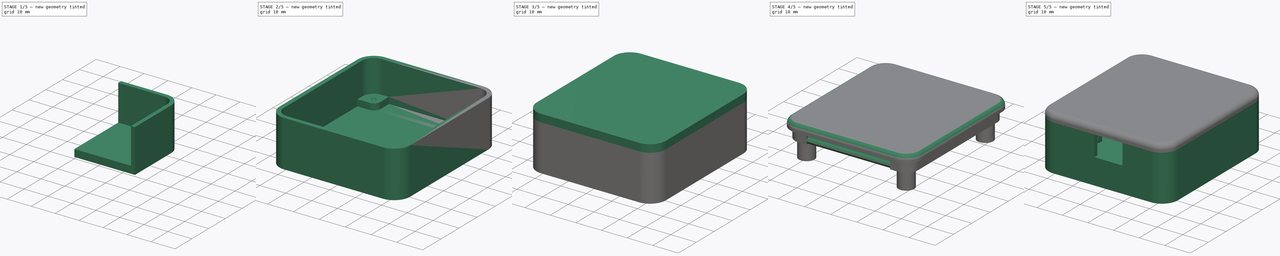
[diagram: build sequence overview — one tinted view per stage of 5, left to right]
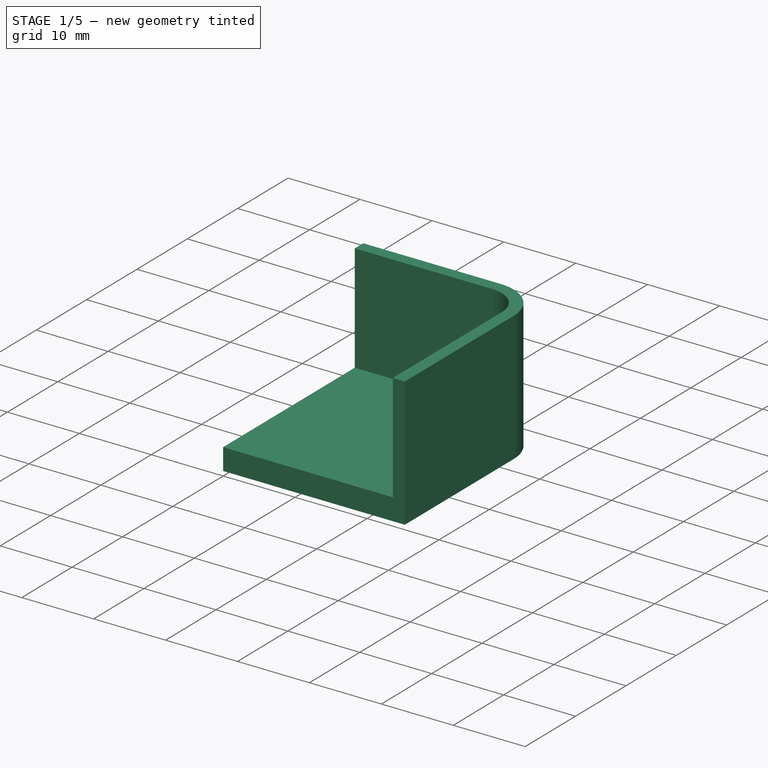
[diagram: stage 1 of 5 — iso view after this stage's code; geometry added in this stage tinted green]
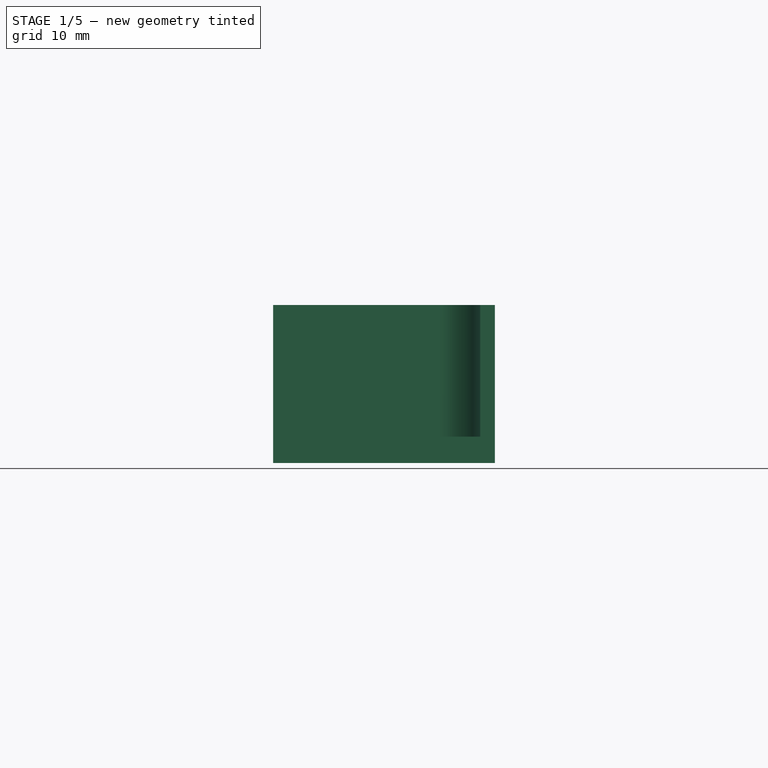
[diagram: stage 1 of 5 — front view after this stage's code; geometry added in this stage tinted green]
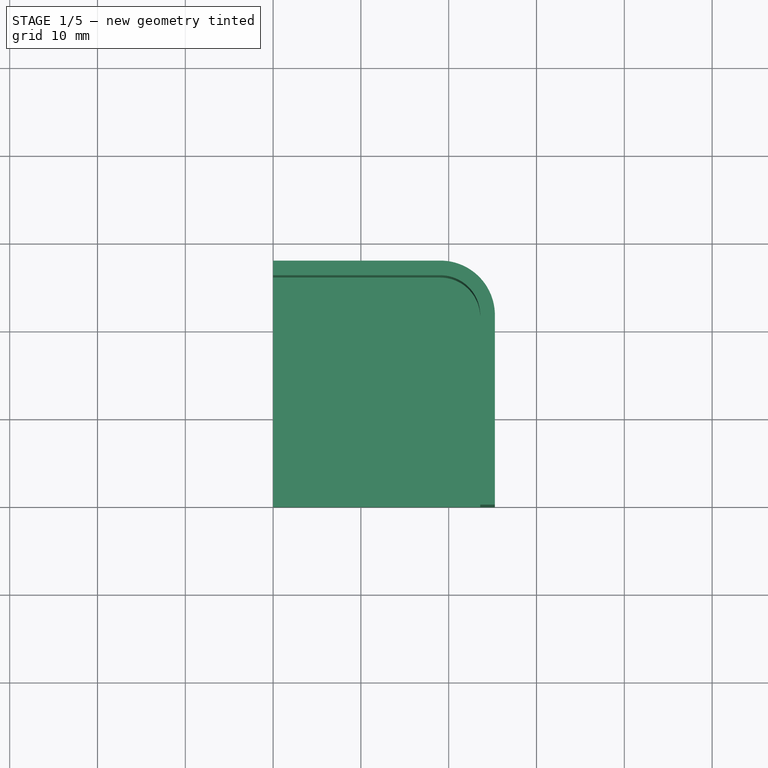
[diagram: stage 1 of 5 — top view after this stage's code; geometry added in this stage tinted green]
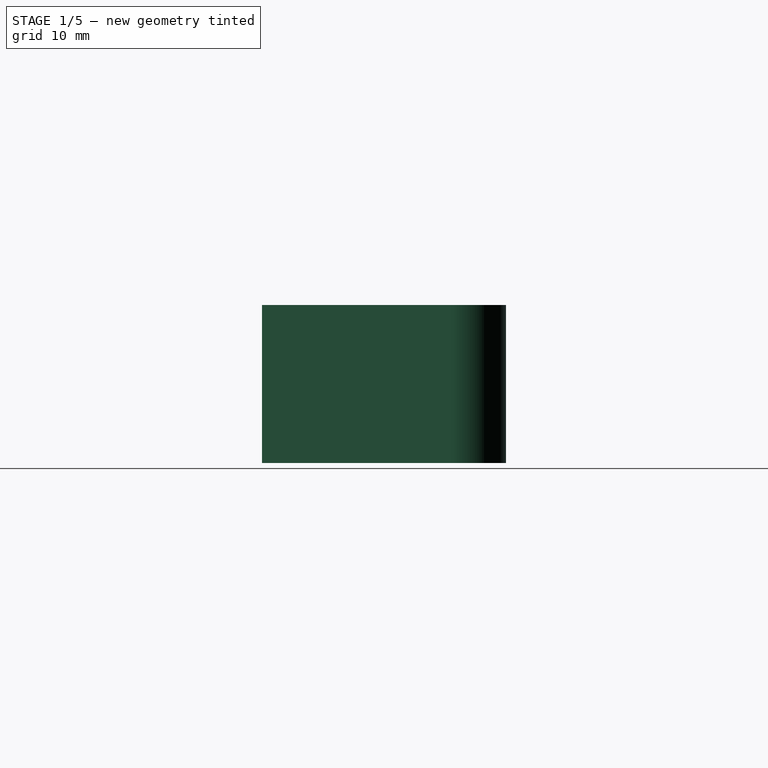
[diagram: stage 1 of 5 — right view after this stage's code; geometry added in this stage tinted green]
FCSTD DOCUMENT  (FreeCAD 2021.412R24301 +3461 (Git))
Label: housing
License: All rights reserved
LicenseURL: http://en.wikipedia.org/wiki/All_rights_reserved
objects: Sketcher::SketchObject×14, PartDesign::Pad×8, PartDesign::Mirrored×6, PartDesign::Pocket×5, PartDesign::ShapeBinder×4, PartDesign::Plane×2, PartDesign::MultiTransform×2, Part::SubShapeBinder×2, PartDesign::Body×2, Part::Feature×1, Part::FeaturePython×1, App::DocumentObjectGroup×1, Part::Compound×1, Spreadsheet::Sheet×1, PartDesign::Draft×1, PartDesign::Fillet×1
note: 88 computed .brp shape members not serialized (recipe doc carries the construction recipe); baked Part::Feature solids carry a one-line shape summary decoded from their .brp

FEATURE [Part::Feature] Feature  label="AR488_nano"
  shape: bbox 44.93 x 48.26 x 15.5 mm, 615 faces, 3 solids (baked)
FEATURE [Part::FeaturePython] Feature_child2  label="AR488_nano.2"  # WARN: FeaturePython — macro-defined, semantics opaque (R4)
  Base = -> Feature
  FilterType = 1
  Invert = false
  OverrideMaxVal = 0
  WindowFrom = 80
  WindowTo = 100
  items = 2
FEATURE [App::DocumentObjectGroup] GrExplode_Feature  label="Exploded AR488_nano"
  ExportMode = 1
  Group = -> [Feature_child2]
  _GroupVersion = 1
FEATURE [Part::Compound] Compound  label="PCB"
  Links = -> [GrExplode_Feature]
  Placement = pos=(0,0,1.6) rot=(1,0,0;3.14159rad)
FEATURE [PartDesign::Plane] DatumPlane
  AttachmentOffset = pos=(0,0,-2.5) rot=(0,0,1;0rad)
  Length = 43.18
  MapMode = 5
  MinimumLength = 10
  MinimumWidth = 10
  Placement = pos=(0,0,-2.5) rot=(0,0,1;0rad)
  ResizeMode = 0
  Support = -> [XY_Plane]
  Width = 48.26
FEATURE [Spreadsheet::Sheet] Spreadsheet  label="ss"
  PythonMode = false
  cells = A1=horizontal shell thickness; B1(ss_shell)==1.67mm; A2=lid clearance; B2(ss_lid_clearance)==0.05mm
FEATURE [PartDesign::ShapeBinder] ShapeBinder
  Placement = pos=(0,0,1.6) rot=(1,0,0;3.14159rad)
  Support = -> [Compound]
  TraceSupport = false
FEATURE [Sketcher::SketchObject] Sketch  label="base"
  ExternalGeometry = -> [ShapeBinder]
  FullyConstrained = true
  MapMode = 5
  Placement = pos=(0,0,-2.5) rot=(0,0,1;0rad)
  Support = -> [DatumPlane]
  expr: .Constraints[10] = <<ss>>.ss_shell + 2mm
  expr: .Constraints[33] = <<ss>>.ss_shell
  sketch-geometry (14):
    g0: LineSegment StartX=0 StartY=0 StartZ=0 EndX=0 EndY=27.8 EndZ=0
    g1: LineSegment StartX=0 StartY=27.8 StartZ=0 EndX=19.05 EndY=27.8 EndZ=0
    g2: ArcOfCircle CenterX=19.05 CenterY=21.59 CenterZ=0 NormalX=0 NormalY=0 NormalZ=1 AngleXU=0 Radius=6.21 StartAngle=-3.2001e-12 EndAngle=1.5708
    g3: LineSegment StartX=25.26 StartY=21.59 StartZ=0 EndX=25.26 EndY=0 EndZ=0
    g4: LineSegment StartX=25.26 StartY=0 StartZ=0 EndX=0 EndY=0 EndZ=0
    g5: LineSegment StartX=0 StartY=26.13 StartZ=0 EndX=19.05 EndY=26.13 EndZ=0
    g6: ArcOfCircle CenterX=19.05 CenterY=21.59 CenterZ=0 NormalX=0 NormalY=0 NormalZ=1 AngleXU=0 Radius=4.54 StartAngle=1e-16 EndAngle=1.5708
    g7: LineSegment StartX=23.59 StartY=21.59 StartZ=0 EndX=23.59 EndY=0 EndZ=0
    g8: Circle [constr] CenterX=19.05 CenterY=21.59 CenterZ=0 NormalX=0 NormalY=0 NormalZ=1 AngleXU=0 Radius=2.62
    g9: LineSegment StartX=23.59 StartY=18.97 StartZ=0 EndX=19.05 EndY=18.97 EndZ=0
    g10: LineSegment StartX=16.43 StartY=21.59 StartZ=0 EndX=16.43 EndY=26.13 EndZ=0
    g11: ArcOfCircle CenterX=19.05 CenterY=21.59 CenterZ=0 NormalX=0 NormalY=0 NormalZ=1 AngleXU=0 Radius=2.62 StartAngle=3.14159 EndAngle=4.71239
    g12: Circle CenterX=19.05 CenterY=21.59 CenterZ=0 NormalX=0 NormalY=0 NormalZ=1 AngleXU=0 Radius=0.95
    g13: LineSegment [constr] StartX=19.05 StartY=20.64 StartZ=0 EndX=19.05 EndY=18.97 EndZ=0
  constraints (36):
    c: Coincident(g-1,g0)
    c: PointOnObject(g0,g-2)
    c: Coincident(g0,g1)
    c: Horizontal(g1)
    c: Tangent(g1,g2) = 1.5708
    c: PointOnObject(g3,g-1)
    c: Vertical(g3)
    c: Coincident(g3,g4)
    c: Coincident(g4,g0)
    c: Coincident(g2,g-3)
    c: DistanceX(g-4,g2) = 3.67
    c: Tangent(g2,g3) = 1.5708
    c: PointOnObject(g5,g0)
    c: Horizontal(g5)
    c: Tangent(g5,g6) = 1.5708
    c: PointOnObject(g7,g4)
    c: Vertical(g7)
    c: Coincident(g6,g2)
    c: Tangent(g6,g7) = 1.5708
    c: DistanceX(g-4,g6) = 2
    c: Coincident(g8,g2)
    c: PointOnObject(g9,g8)
    c: PointOnObject(g9,g7)
    c: Horizontal(g9)
    c: PointOnObject(g10,g5)
    c: Vertical(g10)
    c: Coincident(g11,g2)
    c: Coincident(g11,g9)
    c: Coincident(g12,g2)
    c: Diameter(g12) = 1.9
    c: PointOnObject(g13,g12)
    c: Coincident(g13,g9)
    c: Vertical(g13)
    c: DistanceY(g13,g13) = 1.67
    c: Vertical(g13,g2)
    c: Tangent(g11,g10) = 1.5708
FEATURE [Sketcher::SketchObject] Sketch001
  ExternalGeometry = -> [Sketch]
  FullyConstrained = true
  MapMode = 5
  Placement = pos=(0,0,-2.5) rot=(0,0,1;0rad)
  Support = -> [DatumPlane]
  sketch-geometry (5):
    g0: LineSegment StartX=25.26 StartY=0 StartZ=0 EndX=0 EndY=0 EndZ=0
    g1: LineSegment StartX=0 StartY=0 StartZ=0 EndX=0 EndY=27.8 EndZ=0
    g2: LineSegment StartX=0 StartY=27.8 StartZ=0 EndX=19.05 EndY=27.8 EndZ=0
    g3: ArcOfCircle CenterX=19.05 CenterY=21.59 CenterZ=0 NormalX=0 NormalY=0 NormalZ=1 AngleXU=0 Radius=6.21 StartAngle=2.453e-13 EndAngle=1.5708
    g4: LineSegment StartX=25.26 StartY=21.59 StartZ=0 EndX=25.26 EndY=0 EndZ=0
  constraints (10):
    c: Coincident(g-4,g0)
    c: Coincident(g0,g-1)
    c: Coincident(g0,g1)
    c: Coincident(g1,g-5)
    c: Coincident(g1,g2)
    c: Coincident(g2,g-5)
    c: Tangent(g2,g3) = 1.5708
    c: Coincident(g3,g-4)
    c: Coincident(g3,g4)
    c: Coincident(g4,g0)
FEATURE [PartDesign::Pad] Pad
  ClaimChildren = false
  Direction = (1,1,1)
  Fit = 0
  FitJoin = 0
  InnerFit = 0
  InnerFitJoin = 0
  InnerTaperAngle = 0
  InnerTaperAngleRev = 0
  Length = 3
  Length2 = 100
  NewSolid = false
  Placement = pos=(0,0,-2.5) rot=(0,0,1;0rad)
  Profile = -> Sketch001
  Refine = true
  Reversed = true
  Suppress = false
  Type = 0
FEATURE [Sketcher::SketchObject] Sketch002
  ExternalGeometry = -> [Sketch]
  FullyConstrained = true
  MapMode = 5
  Placement = pos=(0,0,-2.5) rot=(0,0,1;0rad)
  Support = -> [DatumPlane]
  sketch-geometry (10):
    g0: LineSegment StartX=0 StartY=27.8 StartZ=0 EndX=0 EndY=26.13 EndZ=0
    g1: LineSegment StartX=0 StartY=26.13 StartZ=0 EndX=16.43 EndY=26.13 EndZ=0
    g2: LineSegment StartX=23.59 StartY=18.97 StartZ=0 EndX=23.59 EndY=0 EndZ=0
    g3: LineSegment StartX=23.59 StartY=0 StartZ=0 EndX=25.26 EndY=0 EndZ=0
    g4: LineSegment StartX=25.26 StartY=0 StartZ=0 EndX=25.26 EndY=21.59 EndZ=0
    g5: ArcOfCircle CenterX=19.05 CenterY=21.59 CenterZ=0 NormalX=0 NormalY=0 NormalZ=1 AngleXU=0 Radius=6.21 StartAngle=1.795e-13 EndAngle=1.5708
    g6: LineSegment StartX=19.05 StartY=27.8 StartZ=0 EndX=0 EndY=27.8 EndZ=0
    g7: LineSegment StartX=16.43 StartY=26.13 StartZ=0 EndX=19.05 EndY=26.13 EndZ=0
    g8: ArcOfCircle CenterX=19.05 CenterY=21.59 CenterZ=0 NormalX=0 NormalY=0 NormalZ=1 AngleXU=0 Radius=4.54 StartAngle=0 EndAngle=1.5708
    g9: LineSegment StartX=23.59 StartY=21.59 StartZ=0 EndX=23.59 EndY=18.97 EndZ=0
  constraints (20):
    c: Coincident(g-9,g0)
    c: Coincident(g0,g-6)
    c: Coincident(g0,g1)
    c: Coincident(g1,g-4)
    c: Coincident(g2,g-5)
    c: Coincident(g2,g3)
    c: Coincident(g3,g-7)
    c: Coincident(g3,g4)
    c: Coincident(g4,g-8)
    c: Tangent(g4,g5) = -1.5708
    c: Coincident(g5,g-9)
    c: Coincident(g5,g6)
    c: Coincident(g6,g0)
    c: Coincident(g1,g7)
    c: Coincident(g7,g-6)
    c: Tangent(g7,g8) = 1.5708
    c: Coincident(g8,g-5)
    c: Coincident(g8,g9)
    c: Coincident(g9,g2)
    c: Coincident(g2,g-3)
FEATURE [PartDesign::Pad] Pad001
  BaseFeature = -> Pad
  ClaimChildren = false
  Direction = (1,1,1)
  Fit = 0
  FitJoin = 0
  InnerFit = 0
  InnerFitJoin = 0
  InnerTaperAngle = 0
  InnerTaperAngleRev = 0
  Length = 15
  Length2 = 100
  NewSolid = false
  Placement = pos=(0,0,-2.5) rot=(0,0,1;0rad)
  Profile = -> Sketch002
  Refine = true
  Suppress = false
  Type = 0
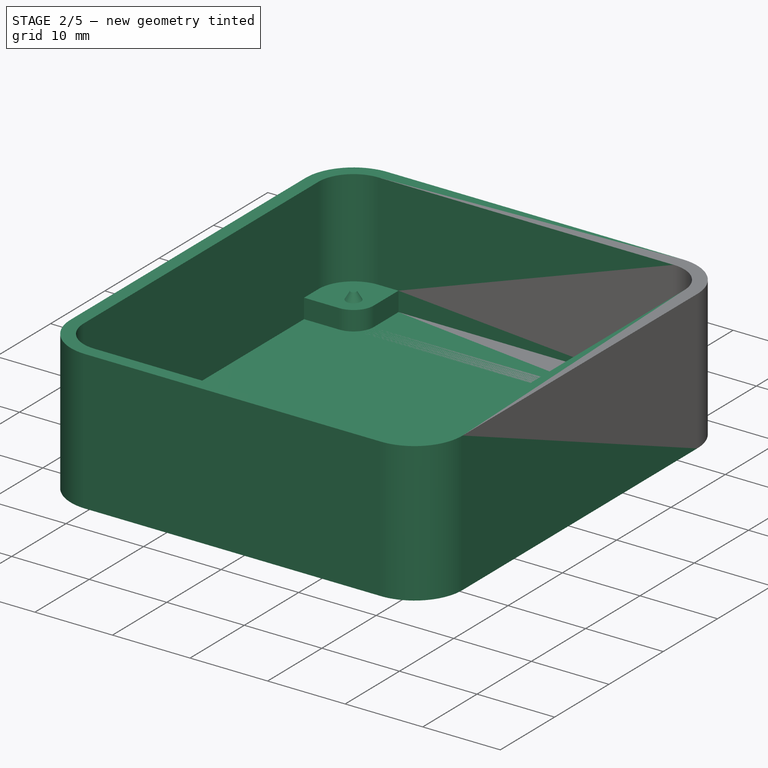
[diagram: stage 2 of 5 — iso view after this stage's code; geometry added in this stage tinted green]
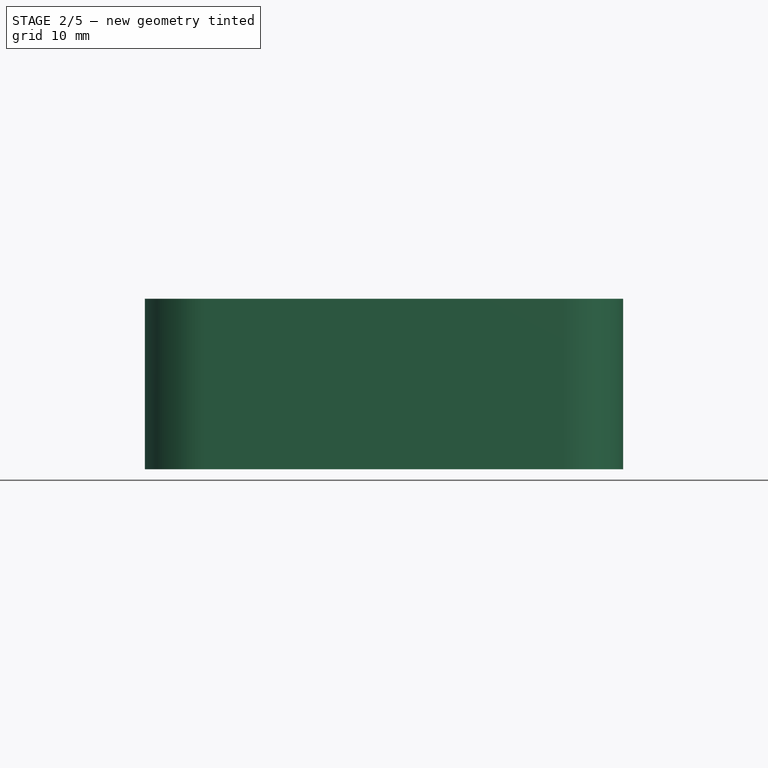
[diagram: stage 2 of 5 — front view after this stage's code; geometry added in this stage tinted green]
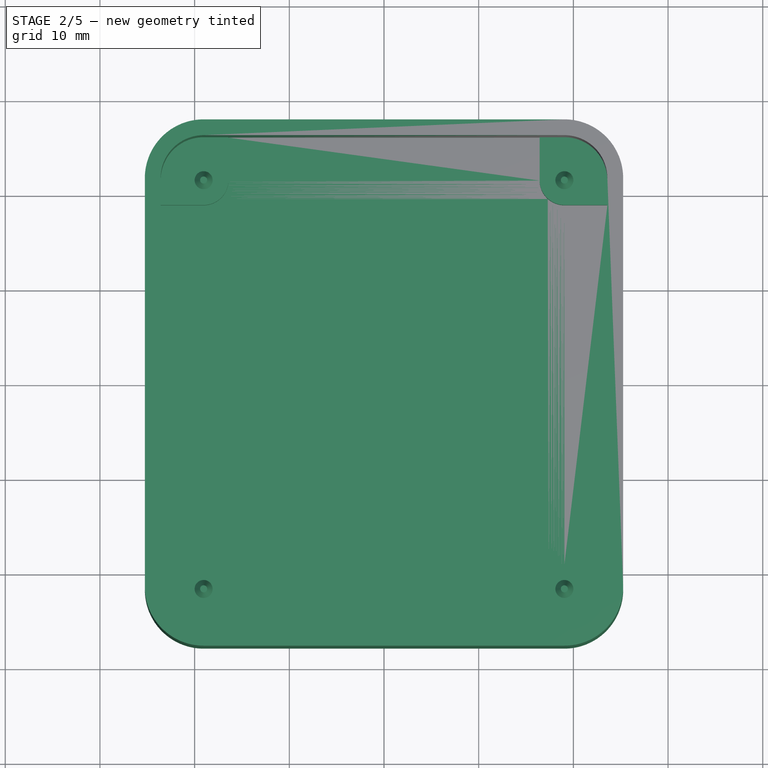
[diagram: stage 2 of 5 — top view after this stage's code; geometry added in this stage tinted green]
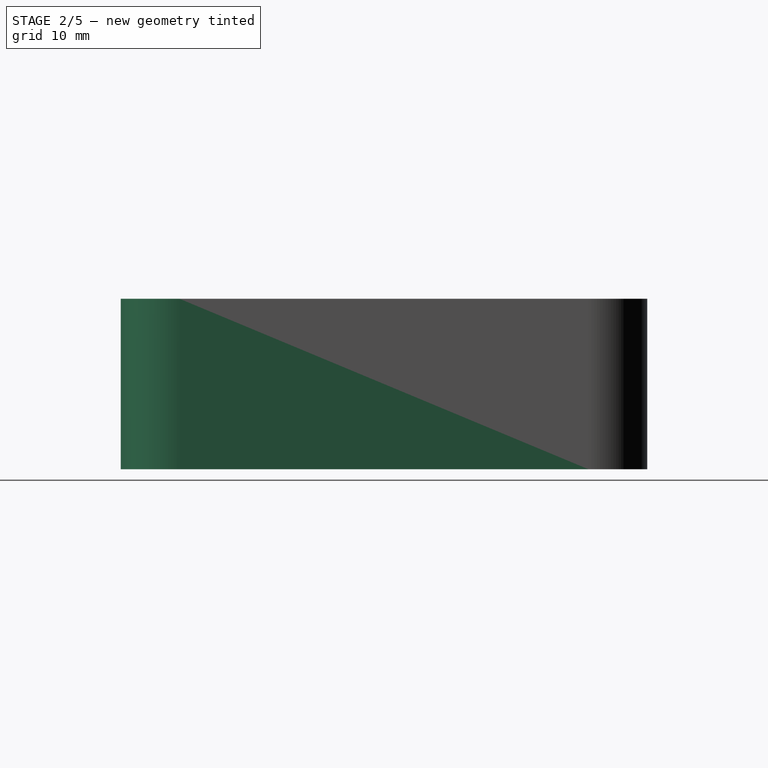
[diagram: stage 2 of 5 — right view after this stage's code; geometry added in this stage tinted green]
FEATURE [Sketcher::SketchObject] Sketch003
  ExternalGeometry = -> [Sketch]
  FullyConstrained = true
  MapMode = 5
  Placement = pos=(0,0,-2.5) rot=(0,0,1;0rad)
  Support = -> [DatumPlane]
  sketch-geometry (6):
    g0: LineSegment StartX=16.43 StartY=26.13 StartZ=0 EndX=19.05 EndY=26.13 EndZ=0
    g1: ArcOfCircle CenterX=19.05 CenterY=21.59 CenterZ=0 NormalX=0 NormalY=0 NormalZ=1 AngleXU=0 Radius=4.54 StartAngle=0 EndAngle=1.5708
    g2: LineSegment StartX=23.59 StartY=21.59 StartZ=0 EndX=23.59 EndY=18.97 EndZ=0
    g3: LineSegment StartX=23.59 StartY=18.97 StartZ=0 EndX=19.05 EndY=18.97 EndZ=0
    g4: ArcOfCircle CenterX=19.05 CenterY=21.59 CenterZ=0 NormalX=0 NormalY=0 NormalZ=1 AngleXU=0 Radius=2.62 StartAngle=3.14159 EndAngle=4.71239
    g5: LineSegment StartX=16.43 StartY=21.59 StartZ=0 EndX=16.43 EndY=26.13 EndZ=0
  constraints (12):
    c: Coincident(g-4,g0)
    c: Coincident(g0,g-6)
    c: Tangent(g0,g1) = 1.5708
    c: Coincident(g1,g-6)
    c: Coincident(g1,g2)
    c: Coincident(g2,g-3)
    c: Coincident(g2,g3)
    c: Coincident(g3,g-5)
    c: Tangent(g3,g4) = 1.5708
    c: Coincident(g4,g-5)
    c: Coincident(g4,g5)
    c: Coincident(g5,g0)
FEATURE [PartDesign::Pad] Pad002
  BaseFeature = -> Pad001
  ClaimChildren = false
  Direction = (1,1,1)
  Fit = 0
  FitJoin = 0
  InnerFit = 0
  InnerFitJoin = 0
  InnerTaperAngle = 0
  InnerTaperAngleRev = 0
  Length = 2.5
  Length2 = 100
  NewSolid = false
  Placement = pos=(0,0,-2.5) rot=(0,0,1;0rad)
  Profile = -> Sketch003
  Refine = true
  Suppress = false
  Type = 0
FEATURE [PartDesign::Mirrored] Mirrored
  CopyShape = false
  MirrorPlane = -> Sketch001 [V_Axis]
  NewSolid = false
  ParallelTransform = true
  Placement = pos=(0,0,-2.5) rot=(0,0,1;0rad)
  Refine = true
  SubTransform = true
  Suppress = false
FEATURE [PartDesign::Mirrored] Mirrored001
  CopyShape = false
  MirrorPlane = -> Sketch001 [H_Axis]
  NewSolid = false
  ParallelTransform = true
  Placement = pos=(0,0,-2.5) rot=(0,0,1;0rad)
  Refine = true
  SubTransform = true
  Suppress = false
FEATURE [Sketcher::SketchObject] Sketch004
  ExternalGeometry = -> [Sketch]
  FullyConstrained = true
  MapMode = 5
  Support = -> [XY_Plane]
  sketch-geometry (1):
    g0: Circle CenterX=19.05 CenterY=21.59 CenterZ=0 NormalX=0 NormalY=0 NormalZ=1 AngleXU=0 Radius=0.95
  constraints (2):
    c: Coincident(g0,g-3)
    c: Equal(g-3,g0)
FEATURE [PartDesign::Pad] Pad003
  BaseFeature = -> Pad002
  ClaimChildren = false
  Direction = (1,1,1)
  Fit = 0
  FitJoin = 0
  InnerFit = 0
  InnerFitJoin = 0
  InnerTaperAngle = 0
  InnerTaperAngleRev = 0
  Length = 1
  Length2 = 100
  NewSolid = false
  Placement = pos=(0,0,-2.5) rot=(0,0,1;0rad)
  Profile = -> Sketch004
  Suppress = false
  Type = 0
FEATURE [PartDesign::Draft] Draft
  Angle = 30
  Base = -> Pad003 [Face16]
  BaseFeature = -> Pad003
  NewSolid = false
  Placement = pos=(0,0,-2.5) rot=(0,0,1;0rad)
  SupportTransform = false
  Suppress = false
FEATURE [PartDesign::MultiTransform] MultiTransform
  BaseFeature = -> Draft
  CopyShape = false
  NewSolid = false
  OriginalSubs = -> [Pad,Pad001,Pad002,Pad003,Draft]
  Originals = -> [Pad,Pad001,Pad002,Pad003,Draft]
  ParallelTransform = true
  Placement = pos=(0,0,-2.5) rot=(0,0,1;0rad)
  Refine = true
  SubTransform = true
  Suppress = false
  Transformations = -> [Mirrored,Mirrored001]
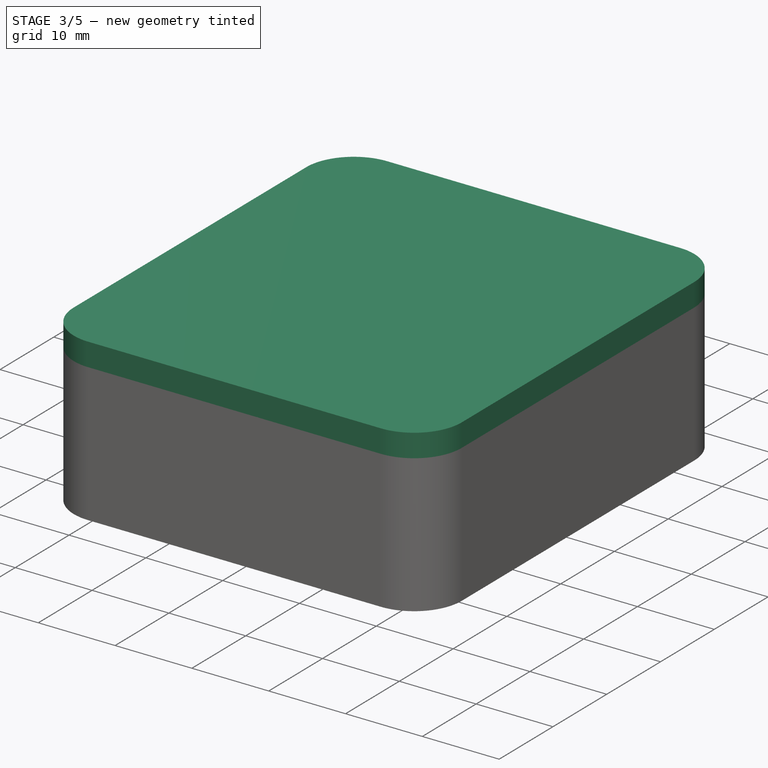
[diagram: stage 3 of 5 — iso view after this stage's code; geometry added in this stage tinted green]
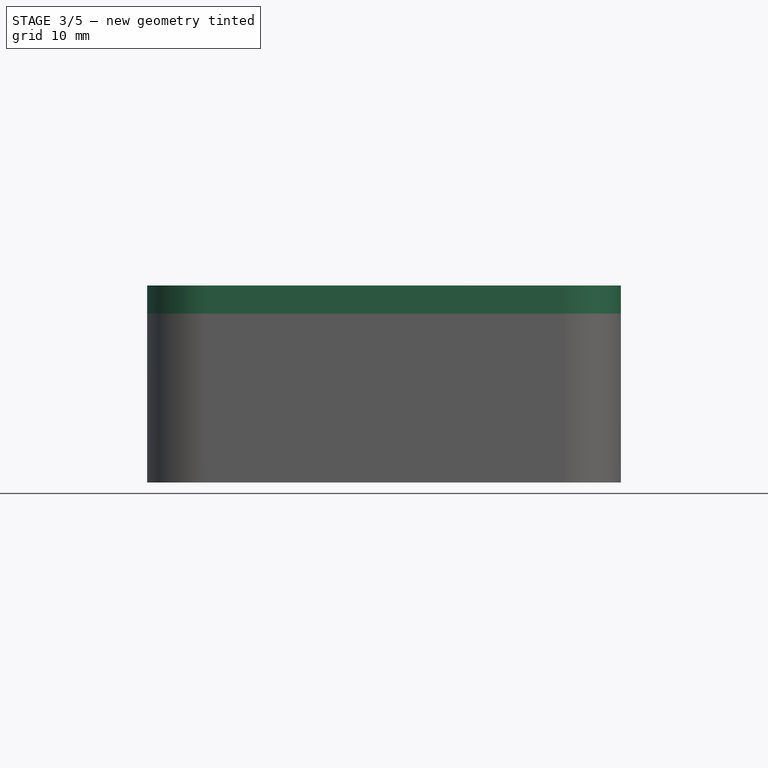
[diagram: stage 3 of 5 — front view after this stage's code; geometry added in this stage tinted green]
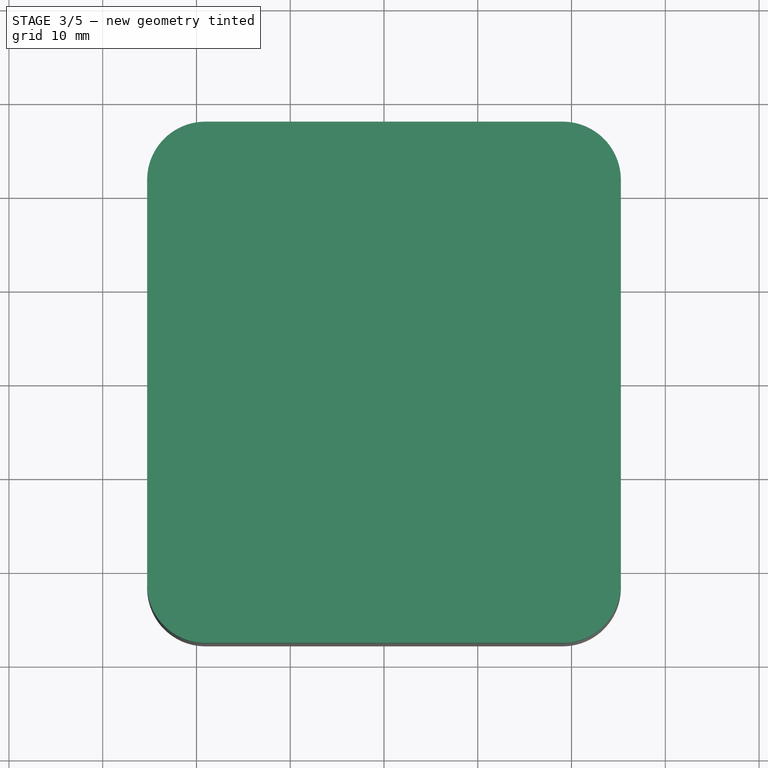
[diagram: stage 3 of 5 — top view after this stage's code; geometry added in this stage tinted green]
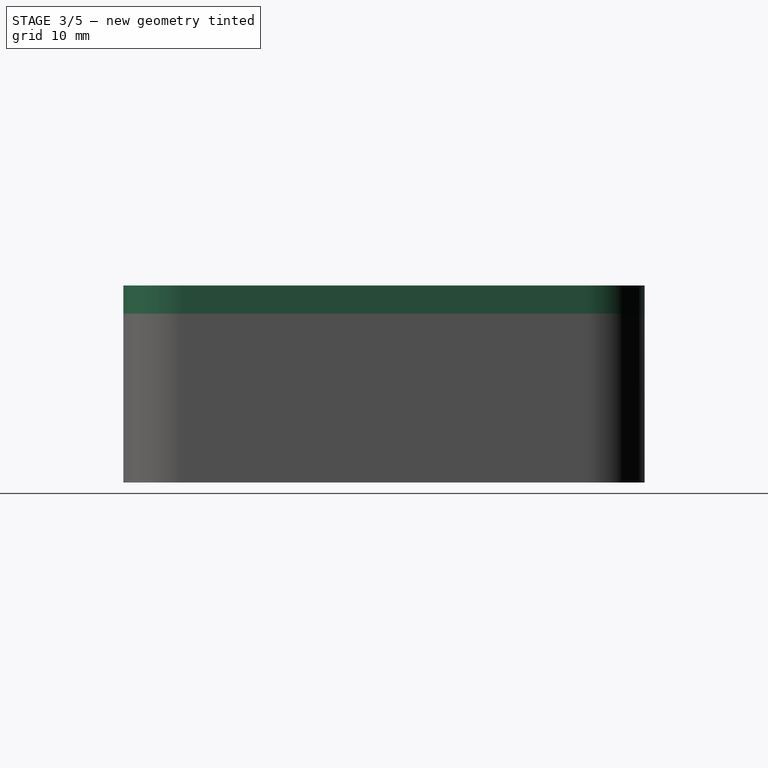
[diagram: stage 3 of 5 — right view after this stage's code; geometry added in this stage tinted green]
FEATURE [Sketcher::SketchObject] Sketch005
  ExternalGeometry = -> [ShapeBinder,MultiTransform]
  FullyConstrained = true
  MapMode = 5
  Placement = pos=(0,0,0) rot=(0.57735,0.57735,0.57735;2.0944rad)
  Support = -> [YZ_Plane]
  sketch-geometry (6):
    g0: LineSegment StartX=17.52 StartY=12.5 StartZ=0 EndX=-19.42 EndY=12.5 EndZ=0
    g1: LineSegment StartX=-19.42 StartY=12.5 StartZ=0 EndX=-19.42 EndY=11.7 EndZ=0
    g2: LineSegment StartX=-19.42 StartY=11.7 StartZ=0 EndX=17.52 EndY=11.7 EndZ=0
    g3: LineSegment StartX=17.52 StartY=11.7 StartZ=0 EndX=17.52 EndY=12.5 EndZ=0
    g4: LineSegment [constr] StartX=12.52 StartY=1.6 StartZ=0 EndX=-14.42 EndY=1.6 EndZ=0
    g5: LineSegment [constr] StartX=-0.95 StartY=1.6 StartZ=0 EndX=-0.95 EndY=12.5 EndZ=0
  constraints (16):
    c: Coincident(g0,g1)
    c: Coincident(g1,g2)
    c: Coincident(g2,g3)
    c: Coincident(g3,g0)
    c: Horizontal(g0)
    c: Vertical(g1)
    c: Vertical(g3)
    c: Coincident(g4,g-3)
    c: Coincident(g4,g-4)
    c: PointOnObject(g5,g4)
    c: PointOnObject(g5,g0)
    c: Symmetric(g-3,g-4,g5)
    c: Symmetric(g2,g1,g5)
    c: DistanceX(g-3,g2) = 4
    c: Horizontal(g0,g-5)
    c: DistanceY(g3,g3) = 0.8
FEATURE [PartDesign::Pocket] Pocket
  BaseFeature = -> MultiTransform
  ClaimChildren = false
  Fit = 0
  FitJoin = 0
  InnerFit = 0
  InnerFitJoin = 0
  InnerTaperAngle = 0
  InnerTaperAngleRev = 0
  Length = 5
  Length2 = 100
  NewSolid = false
  Placement = pos=(0,0,-2.5) rot=(0,0,1;0rad)
  Profile = -> Sketch005
  Suppress = false
  Type = 1
FEATURE [Part::SubShapeBinder] Import  label="Import(Pocket)"
  BindCopyOnChange = 0
  BindMode = 0
  ClaimChildren = false
  Context = -> Body001 [Import.]
  FillStyle = 0
  Fuse = false
  MakeFace = false
  PartialLoad = false
  Relative = true
  Support = -> [Body[Pocket.]]
  _Version = 7
FEATURE [PartDesign::Plane] DatumPlane001
  Length = 52.5
  MapMode = 5
  MinimumLength = 10
  MinimumWidth = 10
  Placement = pos=(0,0,12.5) rot=(0,0,1;0rad)
  ResizeMode = 0
  Support = -> [Import]
  Width = 57.58
FEATURE [Sketcher::SketchObject] Sketch006
  ExternalGeometry = -> [Import]
  FullyConstrained = true
  MapMode = 5
  Placement = pos=(0,0,12.5) rot=(0,0,1;0rad)
  Support = -> [DatumPlane001]
  sketch-geometry (5):
    g0: LineSegment StartX=25.26 StartY=21.59 StartZ=0 EndX=25.26 EndY=0 EndZ=0
    g1: LineSegment StartX=25.26 StartY=0 StartZ=0 EndX=0 EndY=0 EndZ=0
    g2: LineSegment StartX=0 StartY=0 StartZ=0 EndX=0 EndY=27.8 EndZ=0
    g3: LineSegment StartX=0 StartY=27.8 StartZ=0 EndX=19.05 EndY=27.8 EndZ=0
    g4: ArcOfCircle CenterX=19.05 CenterY=21.59 CenterZ=0 NormalX=0 NormalY=0 NormalZ=1 AngleXU=0 Radius=6.21 StartAngle=3.8365e-12 EndAngle=1.5708
  constraints (11):
    c: Tangent(g-5,g0) = 1.5708
    c: Coincident(g0,g1)
    c: Coincident(g1,g-1)
    c: Horizontal(g1)
    c: Coincident(g1,g2)
    c: PointOnObject(g2,g-2)
    c: Coincident(g2,g3)
    c: Coincident(g3,g-5)
    c: Horizontal(g3)
    c: Tangent(g3,g4) = 1.5708
    c: Coincident(g4,g0)
FEATURE [PartDesign::Pad] Pad004
  ClaimChildren = false
  Direction = (1,1,1)
  Fit = 0
  FitJoin = 0
  InnerFit = 0
  InnerFitJoin = 0
  InnerTaperAngle = 0
  InnerTaperAngleRev = 0
  Length = 3
  Length2 = 100
  NewSolid = false
  Placement = pos=(0,0,12.5) rot=(0,0,1;0rad)
  Profile = -> Sketch006
  Suppress = false
  Type = 0
FEATURE [PartDesign::ShapeBinder] ShapeBinder001
  Placement = pos=(0,0,1.6) rot=(1,0,0;3.14159rad)
  Support = -> [Compound]
  TraceSupport = false
FEATURE [Sketcher::SketchObject] Sketch007
  ExternalGeometry = -> [ShapeBinder001]
  FullyConstrained = true
  MapMode = 5
  Placement = pos=(0,0,12.5) rot=(0,0,1;0rad)
  Support = -> [DatumPlane001]
  sketch-geometry (1):
    g0: Circle CenterX=19.05 CenterY=21.59 CenterZ=0 NormalX=0 NormalY=0 NormalZ=1 AngleXU=0 Radius=3
  constraints (2):
    c: Coincident(g0,g-3)
    c: Diameter(g0) = 6
FEATURE [Sketcher::SketchObject] Sketch008
  ExternalGeometry = -> [Import]
  FullyConstrained = true
  MapMode = 5
  Placement = pos=(0,0,12.5) rot=(0,0,1;0rad)
  Support = -> [DatumPlane001]
  expr: .Constraints[19] = <<ss>>.ss_lid_clearance
  sketch-geometry (8):
    g0: LineSegment StartX=0 StartY=26.08 StartZ=0 EndX=0 EndY=23.42 EndZ=0
    g1: LineSegment StartX=0 StartY=23.42 StartZ=0 EndX=19.05 EndY=23.42 EndZ=0
    g2: ArcOfCircle CenterX=19.05 CenterY=21.59 CenterZ=0 NormalX=0 NormalY=0 NormalZ=1 AngleXU=0 Radius=1.83 StartAngle=6e-16 EndAngle=1.5708
    g3: LineSegment StartX=20.88 StartY=21.59 StartZ=0 EndX=20.88 EndY=0 EndZ=0
    g4: LineSegment StartX=20.88 StartY=0 StartZ=0 EndX=23.54 EndY=0 EndZ=0
    g5: LineSegment StartX=0 StartY=26.08 StartZ=0 EndX=19.05 EndY=26.08 EndZ=0
    g6: ArcOfCircle CenterX=19.05 CenterY=21.59 CenterZ=0 NormalX=0 NormalY=0 NormalZ=1 AngleXU=0 Radius=4.49 StartAngle=1e-16 EndAngle=1.5708
    g7: LineSegment StartX=23.54 StartY=21.59 StartZ=0 EndX=23.54 EndY=0 EndZ=0
  constraints (20):
    c: PointOnObject(g0,g-2)
    c: Vertical(g0)
    c: Coincident(g0,g1)
    c: Horizontal(g1)
    c: Tangent(g1,g2) = 1.5708
    c: Tangent(g2,g3) = 1.5708
    c: PointOnObject(g3,g-1)
    c: Coincident(g3,g4)
    c: Horizontal(g4)
    c: Vertical(g3)
    c: DistanceY(g0,g0) = 2.66
    c: Coincident(g0,g5)
    c: Horizontal(g5)
    c: Tangent(g5,g6) = 1.5708
    c: Tangent(g6,g7) = 1.5708
    c: Coincident(g7,g4)
    c: Coincident(g2,g6)
    c: Coincident(g2,g-3) = 2.66
    c: Vertical(g7)
    c: DistanceX(g6,g-3) = 0.05
FEATURE [PartDesign::Pad] Pad005
  BaseFeature = -> Pad004
  ClaimChildren = false
  Direction = (1,1,1)
  Fit = 0
  FitJoin = 0
  InnerFit = 0
  InnerFitJoin = 0
  InnerTaperAngle = 0
  InnerTaperAngleRev = 0
  Length = 4
  Length2 = 100
  NewSolid = false
  Placement = pos=(0,0,12.5) rot=(0,0,1;0rad)
  Profile = -> Sketch008
  Reversed = true
  Suppress = false
  Type = 0
FEATURE [PartDesign::Pad] Pad006
  BaseFeature = -> Pad005
  ClaimChildren = false
  Direction = (1,1,1)
  Fit = 0
  FitJoin = 0
  InnerFit = 0
  InnerFitJoin = 0
  InnerTaperAngle = 0
  InnerTaperAngleRev = 0
  Length = 10
  Length2 = 100
  NewSolid = false
  Placement = pos=(0,0,12.5) rot=(0,0,1;0rad)
  Profile = -> Sketch007
  Reversed = true
  Suppress = false
  Type = 3
  UpToFace = -> ShapeBinder001 [Face4]
FEATURE [PartDesign::Mirrored] Mirrored002
  CopyShape = false
  MirrorPlane = -> Sketch007 [V_Axis]
  NewSolid = false
  ParallelTransform = true
  Placement = pos=(0,0,12.5) rot=(0,0,1;0rad)
  SubTransform = true
  Suppress = false
FEATURE [PartDesign::Mirrored] Mirrored003
  CopyShape = false
  MirrorPlane = -> Sketch007 [H_Axis]
  NewSolid = false
  ParallelTransform = true
  Placement = pos=(0,0,12.5) rot=(0,0,1;0rad)
  SubTransform = true
  Suppress = false
FEATURE [PartDesign::MultiTransform] MultiTransform001
  BaseFeature = -> Pad006
  CopyShape = false
  NewSolid = false
  OriginalSubs = -> [Pad006,Pad005,Pad004]
  Originals = -> [Pad006,Pad005,Pad004]
  ParallelTransform = true
  Placement = pos=(0,0,12.5) rot=(0,0,1;0rad)
  Refine = true
  SubTransform = true
  Suppress = false
  Transformations = -> [Mirrored002,Mirrored003]
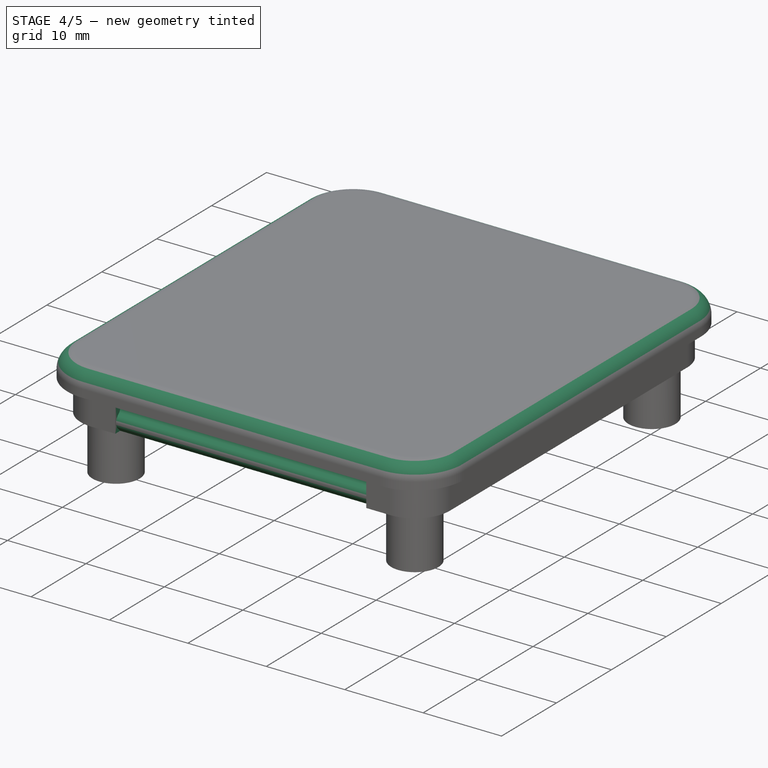
[diagram: stage 4 of 5 — iso view after this stage's code; geometry added in this stage tinted green]
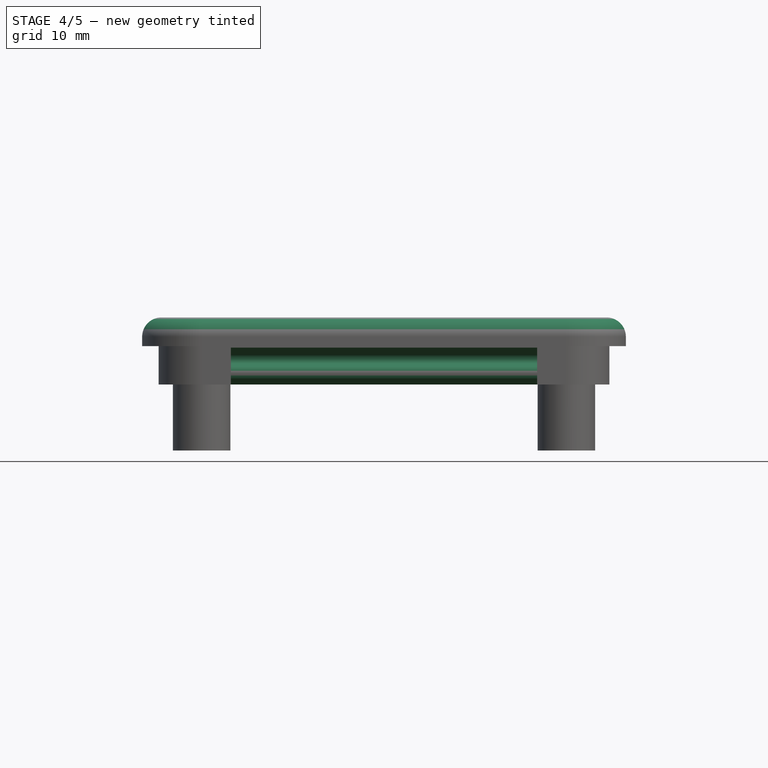
[diagram: stage 4 of 5 — front view after this stage's code; geometry added in this stage tinted green]
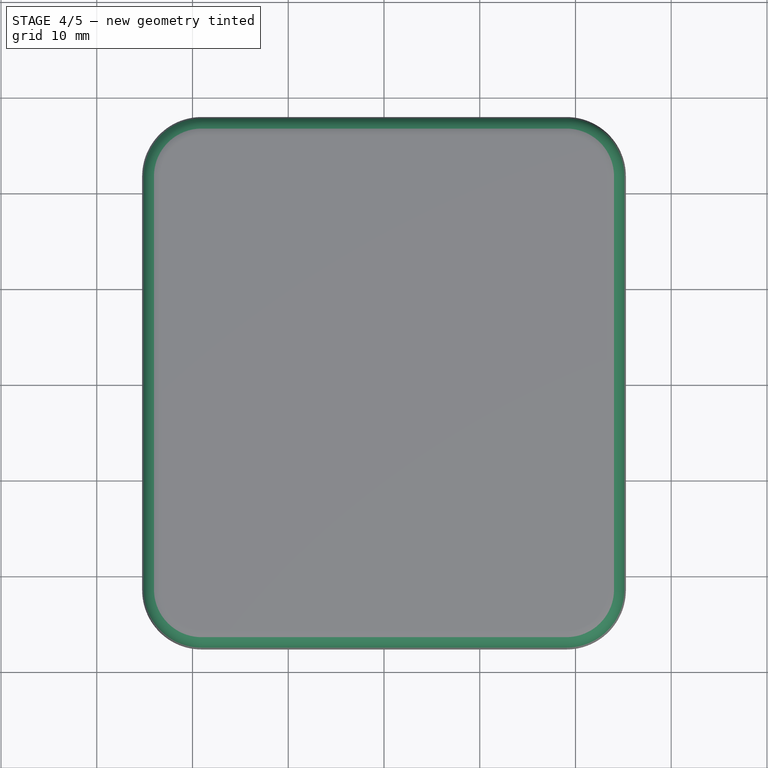
[diagram: stage 4 of 5 — top view after this stage's code; geometry added in this stage tinted green]
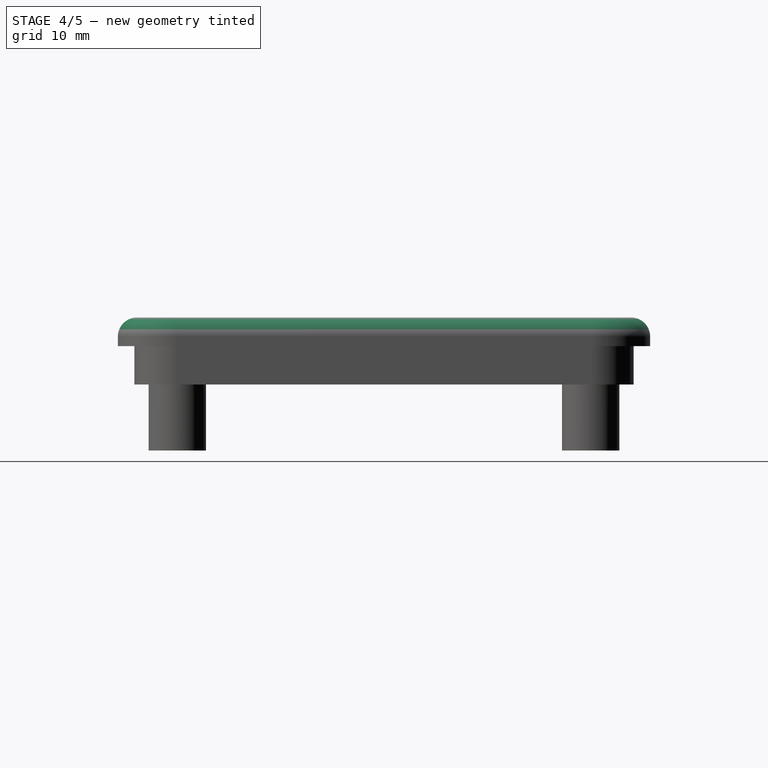
[diagram: stage 4 of 5 — right view after this stage's code; geometry added in this stage tinted green]
FEATURE [Sketcher::SketchObject] Sketch009
  ExternalGeometry = -> [Import,MultiTransform001]
  FullyConstrained = true
  MapMode = 5
  Placement = pos=(0,0,0) rot=(0.57735,0.57735,0.57735;2.0944rad)
  Support = -> [YZ_Plane001]
  sketch-geometry (4):
    g0: LineSegment StartX=17.52 StartY=12.5 StartZ=0 EndX=-19.42 EndY=12.5 EndZ=0
    g1: LineSegment StartX=-19.42 StartY=12.5 StartZ=0 EndX=-19.42 EndY=8.5 EndZ=0
    g2: LineSegment StartX=-19.42 StartY=8.5 StartZ=0 EndX=17.52 EndY=8.5 EndZ=0
    g3: LineSegment StartX=17.52 StartY=8.5 StartZ=0 EndX=17.52 EndY=12.5 EndZ=0
  constraints (10):
    c: Coincident(g0,g1)
    c: Coincident(g1,g2)
    c: Coincident(g2,g3)
    c: Coincident(g3,g0)
    c: Horizontal(g2)
    c: Vertical(g1)
    c: Vertical(g3)
    c: Coincident(g0,g-4)
    c: Horizontal(g-5,g1)
    c: Coincident(g0,g-3)
FEATURE [PartDesign::Pocket] Pocket001
  BaseFeature = -> MultiTransform001
  ClaimChildren = false
  Fit = 0
  FitJoin = 0
  InnerFit = 0
  InnerFitJoin = 0
  InnerTaperAngle = 0
  InnerTaperAngleRev = 0
  Length = 5
  Length2 = 100
  NewSolid = false
  Placement = pos=(0,0,12.5) rot=(0,0,1;0rad)
  Profile = -> Sketch009
  Suppress = false
  Type = 1
FEATURE [PartDesign::ShapeBinder] ShapeBinder002
  Placement = pos=(0,0,0) rot=(0.57735,0.57735,0.57735;2.0944rad)
  Support = -> [Sketch010]
  TraceSupport = false
FEATURE [Sketcher::SketchObject] Sketch011
  ExternalGeometry = -> [ShapeBinder002,Pocket001]
  FullyConstrained = true
  MapMode = 5
  Placement = pos=(0,0,0) rot=(0.57735,0.57735,0.57735;2.0944rad)
  Support = -> [YZ_Plane001]
  sketch-geometry (9):
    g0: LineSegment StartX=25.6579 StartY=10.3922 StartZ=0 EndX=25.385 EndY=10.6651 EndZ=0
    g1: ArcOfCircle CenterX=25.88 CenterY=11.1601 CenterZ=0 NormalX=0 NormalY=0 NormalZ=1 AngleXU=0 Radius=0.7 StartAngle=2.35619 EndAngle=3.92699
    g2: LineSegment StartX=25.385 StartY=11.655 StartZ=0 EndX=26.08 EndY=12.35 EndZ=0
    g3: LineSegment StartX=25.6579 StartY=8.97794 StartZ=0 EndX=25.18 EndY=8.5 EndZ=0
    g4: LineSegment StartX=25.18 StartY=8.5 StartZ=0 EndX=26.13 EndY=8.5 EndZ=0
    g5: LineSegment StartX=26.13 StartY=8.5 StartZ=0 EndX=26.13 EndY=12.35 EndZ=0
    g6: LineSegment StartX=26.13 StartY=12.35 StartZ=0 EndX=26.08 EndY=12.35 EndZ=0
    g7: ArcOfCircle CenterX=24.9508 CenterY=9.68505 CenterZ=0 NormalX=0 NormalY=0 NormalZ=1 AngleXU=0 Radius=1 StartAngle=5.49779 EndAngle=7.06858
    g8: LineSegment [constr] StartX=25.18 StartY=11.1601 StartZ=0 EndX=25.18 EndY=8.5 EndZ=0
  constraints (25):
    c: Tangent(g0,g1) = 1.5708
    c: Equal(g1,g-5)
    c: Tangent(g1,g2) = 1.5708
    c: Equal(g2,g-3)
    c: DistanceY(g1,g-5) = 0.15
    c: Coincident(g3,g4)
    c: Horizontal(g4)
    c: Coincident(g4,g5)
    c: Vertical(g5) = 0.15
    c: Coincident(g5,g6) = 0.15
    c: Coincident(g6,g2)
    c: Horizontal(g6)
    c: PointOnObject(g5,g-7)
    c: Horizontal(g4,g-6)
    c: Angle(g4,g3) = 0.785398
    c: Vertical(g2,g-6)
    c: Tangent(g7,g3) = 1.5708
    c: Tangent(g7,g0) = -1.5708
    c: Parallel(g2,g-3)
    c: Parallel(g0,g-4)
    c: PointOnObject(g8,g1)
    c: Coincident(g8,g3)
    c: Vertical(g8)
    c: Tangent(g1,g8)
    c: Radius(g7) = 1
FEATURE [PartDesign::Pocket] Pocket002
  BaseFeature = -> Pocket001
  ClaimChildren = false
  Fit = 0
  FitJoin = 0
  InnerFit = 0
  InnerFitJoin = 0
  InnerTaperAngle = 0
  InnerTaperAngleRev = 0
  Length = 32
  Length2 = 100
  Midplane = true
  NewSolid = false
  Placement = pos=(0,0,12.5) rot=(0,0,1;0rad)
  Profile = -> Sketch011
  Suppress = false
  Type = 0
FEATURE [PartDesign::Mirrored] Mirrored005
  BaseFeature = -> Pocket002
  CopyShape = false
  MirrorPlane = -> Sketch011 [V_Axis]
  NewSolid = false
  OriginalSubs = -> [Pocket002]
  Originals = -> [Pocket002]
  ParallelTransform = true
  Placement = pos=(0,0,12.5) rot=(0,0,1;0rad)
  SubTransform = true
  Suppress = false
FEATURE [PartDesign::Fillet] Fillet
  Base = -> Mirrored005 [Face5]
  BaseFeature = -> Mirrored005
  NewSolid = false
  Placement = pos=(0,0,12.5) rot=(0,0,1;0rad)
  Radius = 2
  SupportTransform = false
  Suppress = false
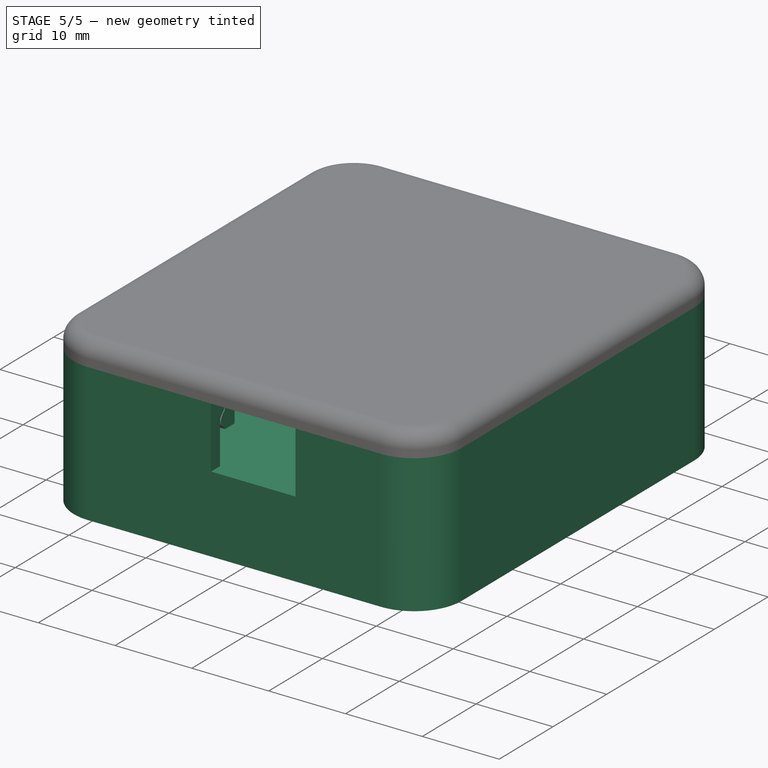
[diagram: stage 5 of 5 — iso view after this stage's code; geometry added in this stage tinted green]
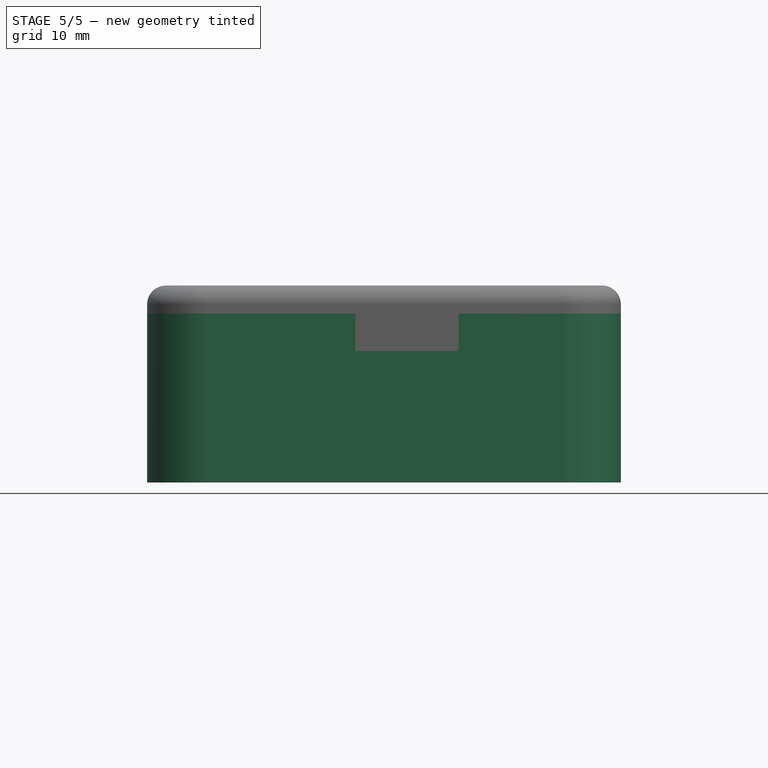
[diagram: stage 5 of 5 — front view after this stage's code; geometry added in this stage tinted green]
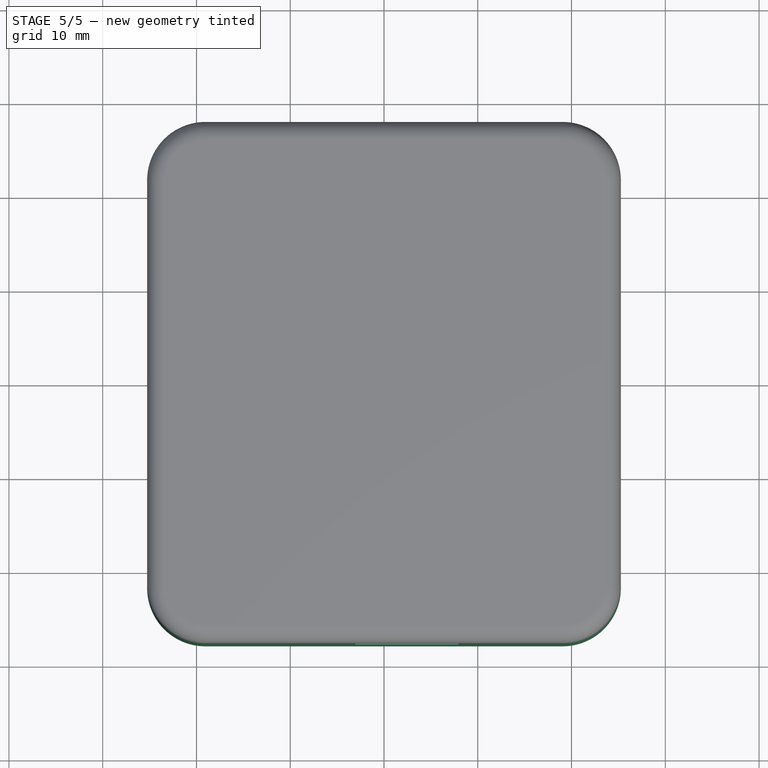
[diagram: stage 5 of 5 — top view after this stage's code; geometry added in this stage tinted green]
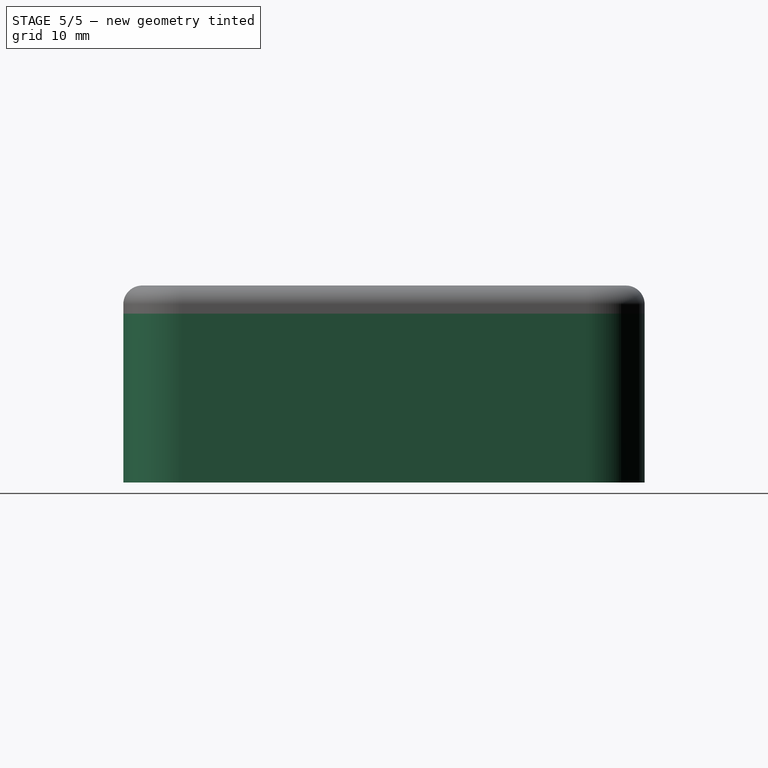
[diagram: stage 5 of 5 — right view after this stage's code; geometry added in this stage tinted green]
FEATURE [Sketcher::SketchObject] Sketch010  label="clip_base"
  ExternalGeometry = -> [Pocket]
  FullyConstrained = true
  MapMode = 5
  Placement = pos=(0,0,0) rot=(0.57735,0.57735,0.57735;2.0944rad)
  Support = -> [YZ_Plane]
  sketch-geometry (8):
    g0: LineSegment StartX=26.13 StartY=12.5 StartZ=0 EndX=25.435 EndY=11.805 EndZ=0
    g1: LineSegment StartX=25.435 StartY=10.8151 StartZ=0 EndX=26.13 EndY=10.1201 EndZ=0
    g2: LineSegment StartX=26.13 StartY=10.1201 StartZ=0 EndX=26.13 EndY=12.5 EndZ=0
    g3: ArcOfCircle CenterX=25.93 CenterY=11.3101 CenterZ=0 NormalX=0 NormalY=0 NormalZ=1 AngleXU=0 Radius=0.7 StartAngle=2.35619 EndAngle=3.92699
    g4: LineSegment [constr] StartX=26.13 StartY=12.5 StartZ=0 EndX=25.23 EndY=12.5 EndZ=0
    g5: LineSegment [constr] StartX=25.23 StartY=12.5 StartZ=0 EndX=25.23 EndY=10.1201 EndZ=0
    g6: LineSegment [constr] StartX=25.23 StartY=10.1201 StartZ=0 EndX=26.13 EndY=10.1201 EndZ=0
    g7: LineSegment [constr] StartX=26.13 StartY=10.1201 StartZ=0 EndX=26.13 EndY=12.5 EndZ=0
  constraints (21):
    c: Coincident(g0,g-3)
    c: Coincident(g1,g2)
    c: Coincident(g2,g0)
    c: Vertical(g2)
    c: Perpendicular(g0,g1)
    c: Equal(g0,g1)
    c: Angle(g2,g1) = 0.785398
    c: Tangent(g0,g3) = -1.5708
    c: Tangent(g1,g3) = -1.5708
    c: Coincident(g4,g5)
    c: Coincident(g5,g6)
    c: Coincident(g6,g7)
    c: Coincident(g7,g4)
    c: Horizontal(g4)
    c: Horizontal(g6)
    c: Vertical(g5)
    c: Coincident(g4,g0)
    c: Coincident(g6,g1)
    c: Tangent(g5,g3)
    c: DistanceX(g6,g6) = 0.9
    c: Radius(g3) = 0.7
FEATURE [PartDesign::Pad] Pad007
  BaseFeature = -> Pocket
  ClaimChildren = false
  Direction = (1,1,1)
  Fit = 0
  FitJoin = 0
  InnerFit = 0
  InnerFitJoin = 0
  InnerTaperAngle = 0
  InnerTaperAngleRev = 0
  Length = 30
  Length2 = 100
  Midplane = true
  NewSolid = false
  Placement = pos=(0,0,-2.5) rot=(0,0,1;0rad)
  Profile = -> Sketch010
  Suppress = false
  Type = 0
FEATURE [PartDesign::Mirrored] Mirrored004
  BaseFeature = -> Pad007
  CopyShape = false
  MirrorPlane = -> Sketch010 [V_Axis]
  NewSolid = false
  OriginalSubs = -> [Pad007]
  Originals = -> [Pad007]
  ParallelTransform = true
  Placement = pos=(0,0,-2.5) rot=(0,0,1;0rad)
  SubTransform = true
  Suppress = false
FEATURE [Sketcher::SketchObject] Sketch012
  ExternalGeometry = -> [ShapeBinder]
  FullyConstrained = true
  MapMode = 5
  Placement = pos=(0,0,0) rot=(1,0,0;1.5708rad)
  Support = -> [XZ_Plane]
  sketch-geometry (10):
    g0: LineSegment [constr] StartX=6.45 StartY=6.5 StartZ=0 EndX=-1.55 EndY=6.5 EndZ=0
    g1: LineSegment [constr] StartX=-1.55 StartY=6.5 StartZ=0 EndX=-1.55 EndY=10.5 EndZ=0
    g2: LineSegment [constr] StartX=-1.55 StartY=10.5 StartZ=0 EndX=6.45 EndY=10.5 EndZ=0
    g3: LineSegment [constr] StartX=6.45 StartY=10.5 StartZ=0 EndX=6.45 EndY=6.5 EndZ=0
    g4: LineSegment [constr] StartX=2.45 StartY=10.5 StartZ=0 EndX=2.45 EndY=0 EndZ=0
    g5: LineSegment StartX=7.95 StartY=12.5 StartZ=0 EndX=-3.05 EndY=12.5 EndZ=0
    g6: LineSegment StartX=-3.05 StartY=12.5 StartZ=0 EndX=-3.05 EndY=4.5 EndZ=0
    g7: LineSegment StartX=-3.05 StartY=4.5 StartZ=0 EndX=7.95 EndY=4.5 EndZ=0
    g8: LineSegment StartX=7.95 StartY=4.5 StartZ=0 EndX=7.95 EndY=12.5 EndZ=0
    g9: LineSegment [constr] StartX=7.95 StartY=8.5 StartZ=0 EndX=-3.05 EndY=8.5 EndZ=0
  constraints (27):
    c: Coincident(g0,g1)
    c: Coincident(g1,g2)
    c: Coincident(g2,g3)
    c: Coincident(g3,g0)
    c: Horizontal(g2)
    c: Vertical(g1)
    c: Vertical(g3)
    c: DistanceY(g-1,g1) = 10.5
    c: DistanceX(g0,g0) = 8
    c: DistanceY(g3,g3) = 4
    c: PointOnObject(g4,g2)
    c: PointOnObject(g4,g-1)
    c: Symmetric(g-3,g-4,g4)
    c: Symmetric(g0,g0,g4)
    c: Coincident(g5,g6)
    c: Coincident(g6,g7)
    c: Coincident(g7,g8)
    c: Coincident(g8,g5)
    c: Horizontal(g5)
    c: Vertical(g6)
    c: DistanceX(g7,g7) = 11
    c: DistanceY(g8,g8) = 8
    c: PointOnObject(g9,g8)
    c: PointOnObject(g9,g6)
    c: Symmetric(g0,g2,g9)
    c: Symmetric(g7,g5,g9)
    c: Symmetric(g7,g6,g4)
FEATURE [PartDesign::Pocket] Pocket003
  BaseFeature = -> Mirrored004
  ClaimChildren = false
  Fit = 0
  FitJoin = 0
  InnerFit = 0
  InnerFitJoin = 0
  InnerTaperAngle = 0
  InnerTaperAngleRev = 0
  Length = 5
  Length2 = 100
  NewSolid = false
  Placement = pos=(0,0,-2.5) rot=(0,0,1;0rad)
  Profile = -> Sketch012
  Refine = true
  Reversed = true
  Suppress = false
  Type = 1
FEATURE [PartDesign::Body] Body  label="Base"
  AutoGroupSolids = false
  ExportMode = 0
  Group = -> [DatumPlane,ShapeBinder,Sketch,Sketch001,Pad,Sketch002,Pad001,Sketch003,Pad002,Sketch004,Pad003,Draft,MultiTransform,Mirrored,Mirrored001,Sketch005,Pocket,Sketch010,Pad007,Mirrored004,Sketch012,Pocket003]
  Origin = -> Origin
  Tip = -> Pocket003
  _ExportChildren = -> [DatumPlane,ShapeBinder,Sketch,Pad,Pad001,Pad002,Pad003,Draft,MultiTransform,Pocket,Pad007,Mirrored004,Pocket003]
  _GroupVersion = 1
FEATURE [PartDesign::ShapeBinder] ShapeBinder003
  Placement = pos=(0,0,0) rot=(1,0,0;1.5708rad)
  Support = -> [Sketch012]
  TraceSupport = false
FEATURE [Part::SubShapeBinder] Import001  label="Import001(Sketch012)"
  BindCopyOnChange = 0
  BindMode = 0
  ClaimChildren = false
  Context = -> Body001 [Import001.]
  FillStyle = 0
  Fuse = false
  MakeFace = false
  PartialLoad = false
  Relative = true
  Support = -> [Body[Sketch012.]]
  _Version = 7
FEATURE [Sketcher::SketchObject] Sketch013
  ExternalGeometry = -> [Import001]
  FullyConstrained = true
  MapMode = 5
  Placement = pos=(0,0,0) rot=(1,0,0;1.5708rad)
  Support = -> [XZ_Plane001]
  sketch-geometry (4):
    g0: LineSegment StartX=7.95 StartY=12.5 StartZ=0 EndX=-3.05 EndY=12.5 EndZ=0
    g1: LineSegment StartX=-3.05 StartY=12.5 StartZ=0 EndX=-3.05 EndY=4.5 EndZ=0
    g2: LineSegment StartX=-3.05 StartY=4.5 StartZ=0 EndX=7.95 EndY=4.5 EndZ=0
    g3: LineSegment StartX=7.95 StartY=4.5 StartZ=0 EndX=7.95 EndY=12.5 EndZ=0
  constraints (10):
    c: Coincident(g0,g1)
    c: Coincident(g1,g2)
    c: Coincident(g2,g3)
    c: Coincident(g3,g0)
    c: Horizontal(g0)
    c: Horizontal(g2)
    c: Vertical(g1)
    c: Vertical(g3)
    c: Coincident(g0,g-3)
    c: Coincident(g1,g-4)
FEATURE [PartDesign::Pocket] Pocket004
  BaseFeature = -> Fillet
  ClaimChildren = false
  Fit = 0
  FitJoin = 0
  InnerFit = 0
  InnerFitJoin = 0
  InnerTaperAngle = 0
  InnerTaperAngleRev = 0
  Length = 5
  Length2 = 100
  NewSolid = false
  Placement = pos=(0,0,12.5) rot=(0,0,1;0rad)
  Profile = -> Sketch013
  Refine = true
  Reversed = true
  Suppress = false
  Type = 1
FEATURE [PartDesign::Body] Body001  label="Lid"
  AutoGroupSolids = false
  ExportMode = 0
  Group = -> [DatumPlane001,Import,Sketch006,Pad004,ShapeBinder001,Sketch008,Pad005,Sketch007,Pad006,MultiTransform001,Mirrored002,Mirrored003,Sketch009,Pocket001,ShapeBinder002,Sketch011,Pocket002,Mirrored005,Fillet,ShapeBinder003,Sketch013,Import001,Pocket004]
  Origin = -> Origin001
  Tip = -> Pocket004
  _ExportChildren = -> [DatumPlane001,Import,Pad004,ShapeBinder001,Pad005,Pad006,MultiTransform001,Pocket001,ShapeBinder002,Pocket002,Mirrored005,Fillet,ShapeBinder003,Import001,Pocket004]
  _GroupVersion = 1
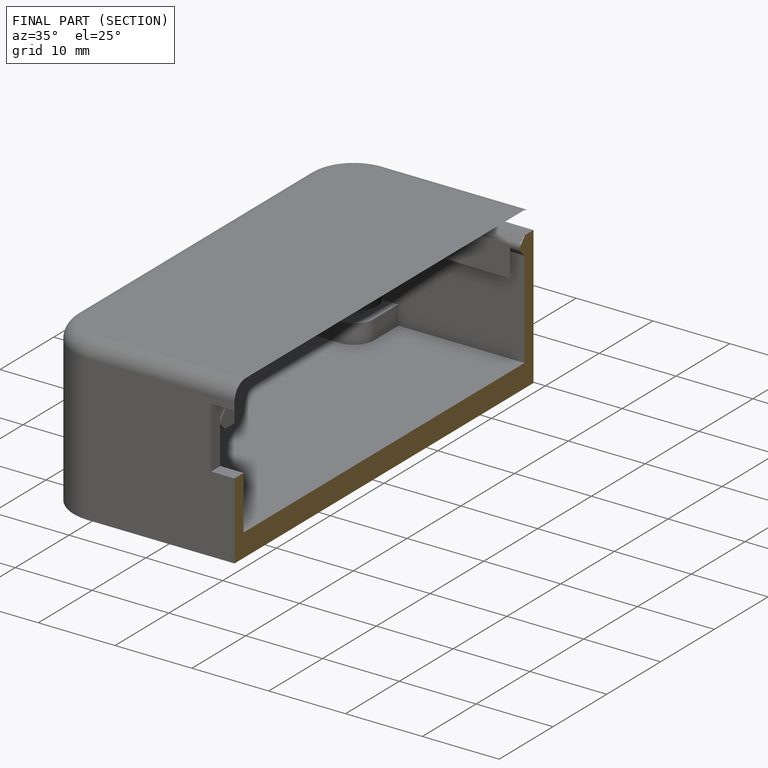
[diagram: finished part — half-section view (interior)]
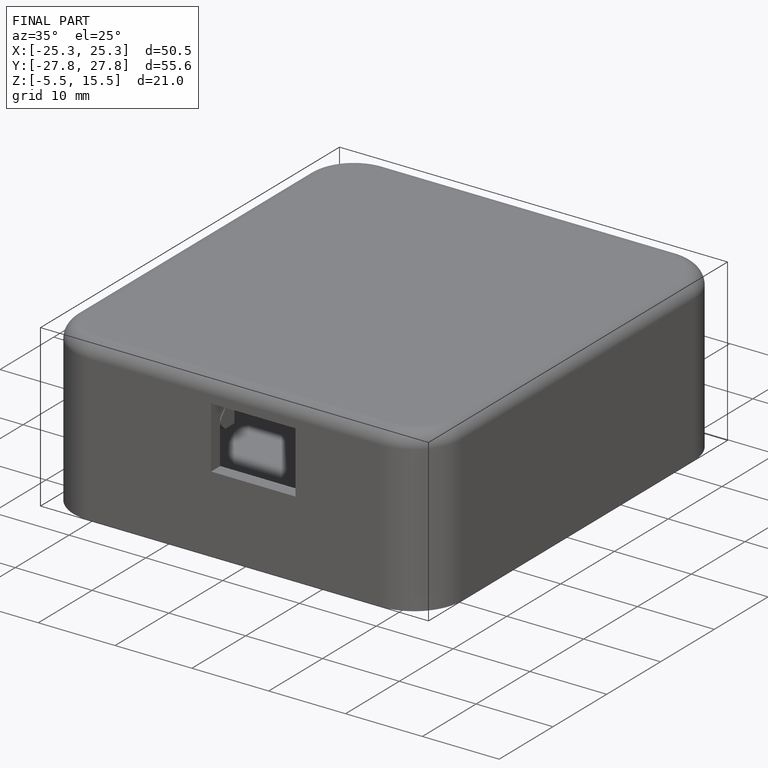
[diagram: finished part — iso view with bounding-box wireframe]
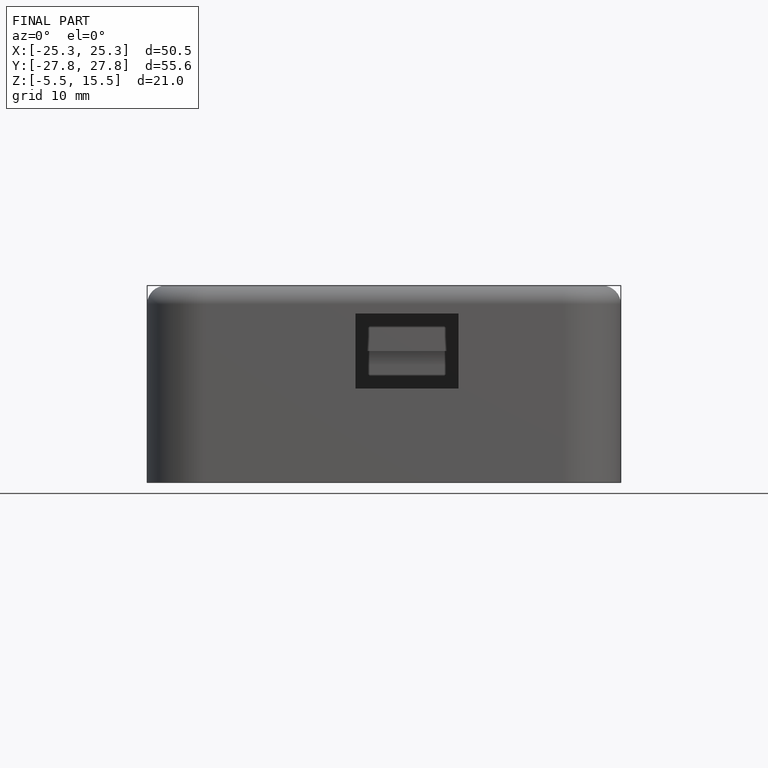
[diagram: finished part — front view with bounding-box wireframe]
